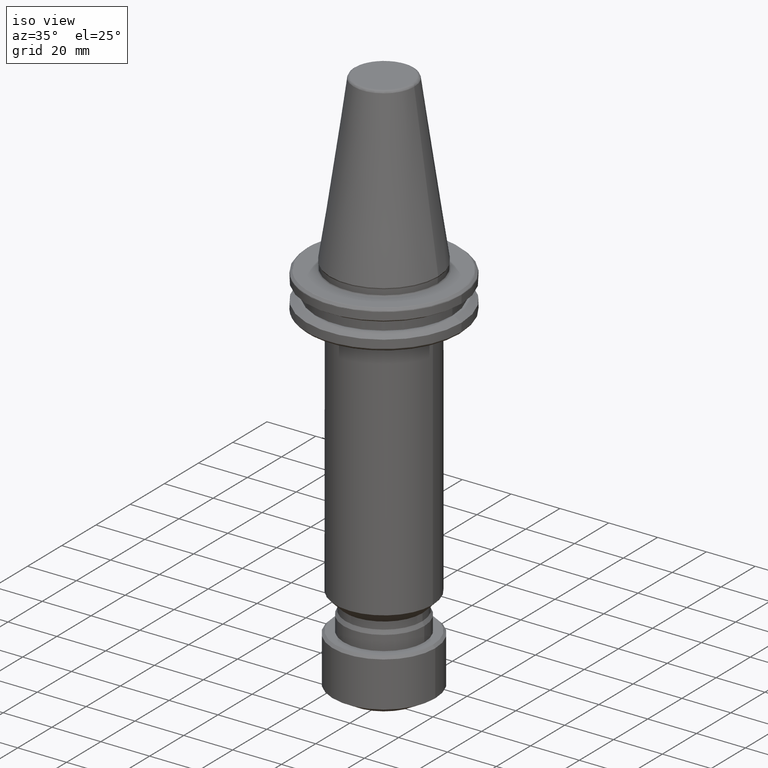
[diagram: clean part render]
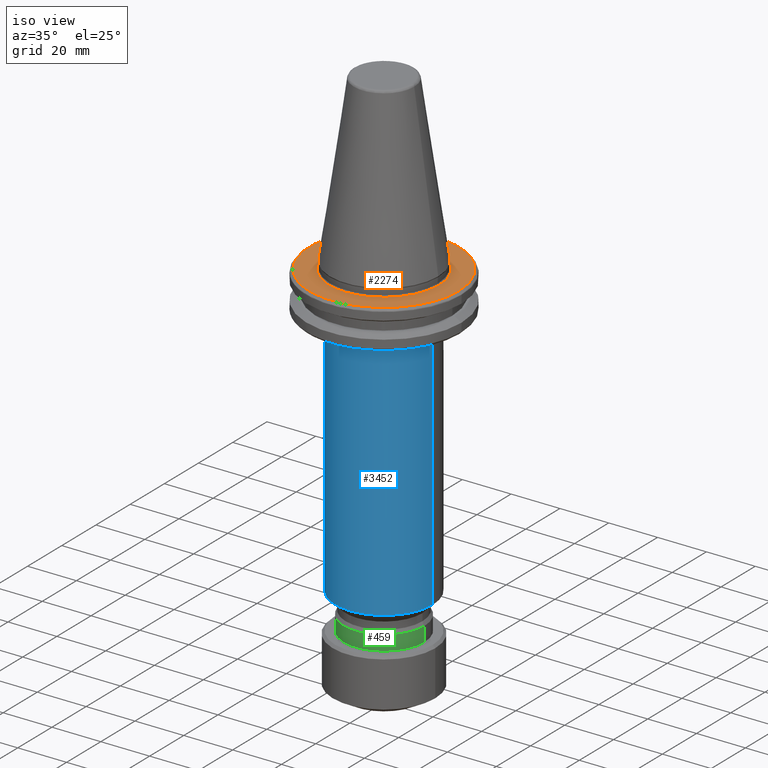
[diagram: same view with three faces highlighted in distinct colors, each labeled with its STEP entity id]
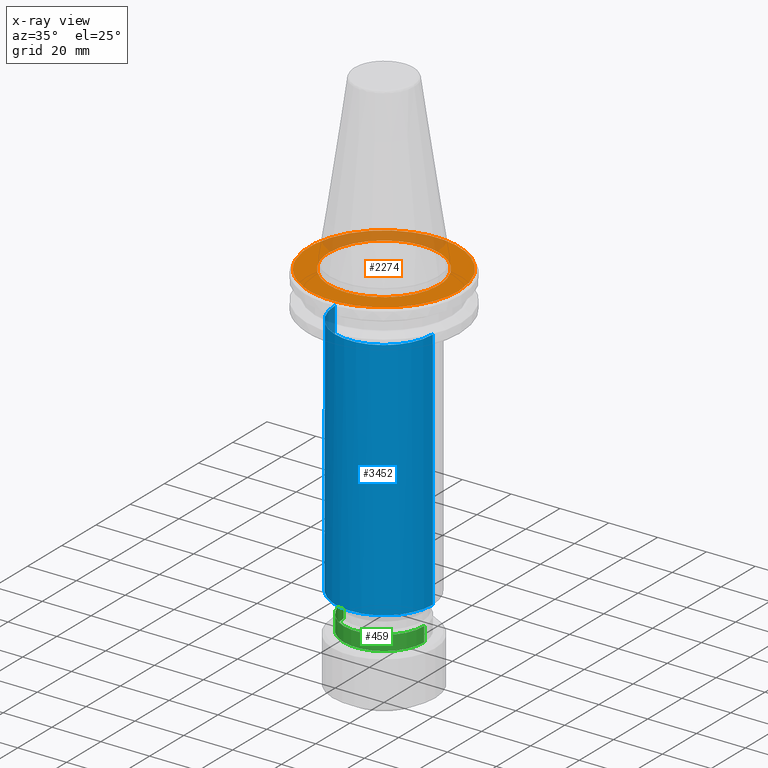
[diagram: x-ray of the same camera — body ghosted, the three highlighted faces saturated]
A machine part, iso view with three faces highlighted in distinct colors.
The next image is the same camera in x-ray (body ghosted, the three faces saturated) — at least one of them is partly hidden behind the body in this view.
Their STEP definitions:

[orange] entity #2274 — the highlighted planar face has unit normal (0, 0, 1).
#6 = CARTESIAN_POINT ( 'NONE',  ( 4.251028217301676900, -22.09485092206981000, -3.200000000000003300 ) ) ;
#8 = CARTESIAN_POINT ( 'NONE',  ( 20.40055232577446300, 9.504079748842523000, -3.200000000000002800 ) ) ;
#15 = CARTESIAN_POINT ( 'NONE',  ( 30.25683737115480900, 4.463908765860851200, -3.200000000000004200 ) ) ;
#19 = CARTESIAN_POINT ( 'NONE',  ( 22.11603594838274800, 4.139014538616728500, -3.200000000000002800 ) ) ;
#24 = CARTESIAN_POINT ( 'NONE',  ( 27.83926536632630900, 12.67616131523396600, -3.200000000000002800 ) ) ;
#30 = CARTESIAN_POINT ( 'NONE',  ( 4.407618502877016700, -22.06440325786277500, -3.200000000000003300 ) ) ;
#34 = CARTESIAN_POINT ( 'NONE',  ( 21.25737027114979600, 21.98943496480594500, -3.200000000000002800 ) ) ;
#40 = CARTESIAN_POINT ( 'NONE',  ( 8.458563634139736100, -20.84958280862343500, -3.200000000000003300 ) ) ;
#41 = ORIENTED_EDGE ( 'NONE', *, *, #3457, .T. ) ;
#49 = CARTESIAN_POINT ( 'NONE',  ( 13.43017972972334000, 27.47815279796058300, -3.200000000000002400 ) ) ;
#52 = CARTESIAN_POINT ( 'NONE',  ( 8.590524805351991600, -20.79589492657481400, -3.200000000000003300 ) ) ;
#56 = EDGE_LOOP ( 'NONE', ( #74, #1421 ) ) ;
#70 = CARTESIAN_POINT ( 'NONE',  ( 8.896980882703543300, -20.66783356944393200, -3.200000000000003300 ) ) ;
#74 = ORIENTED_EDGE ( 'NONE', *, *, #3272, .T. ) ;
#90 = CARTESIAN_POINT ( 'NONE',  ( 22.45304634867161300, -1.715799754931167900, -3.200000000000004200 ) ) ;
#99 = CARTESIAN_POINT ( 'NONE',  ( -25.94001894740214500, 16.20252111301403600, -3.200000000000003300 ) ) ;
#124 = CARTESIAN_POINT ( 'NONE',  ( 22.31609819896382200, -2.907458251744042200, -3.200000000000002800 ) ) ;
#129 = CARTESIAN_POINT ( 'NONE',  ( 22.50000000000000400, 0.0000000000000000000, -3.200000000000002400 ) ) ;
#137 = CARTESIAN_POINT ( 'NONE',  ( 22.49999999999999600, -0.6880163828697204400, -3.200000000000003300 ) ) ;
#143 = CARTESIAN_POINT ( 'NONE',  ( 20.64043889494423200, -8.988933404973398200, -3.200000000000003700 ) ) ;
#155 = CARTESIAN_POINT ( 'NONE',  ( 20.93772414133970000, -8.237955812652693100, -3.200000000000003300 ) ) ;
#170 = CARTESIAN_POINT ( 'NONE',  ( 20.95368502148340500, -8.197263642347369500, -3.200000000000002800 ) ) ;
#173 = CARTESIAN_POINT ( 'NONE',  ( -17.50055599936686700, 25.08445269893392600, -3.200000000000002400 ) ) ;
#181 = CARTESIAN_POINT ( 'NONE',  ( 19.18907189198100100, -11.75138774876444200, -3.200000000000004200 ) ) ;
#195 = CARTESIAN_POINT ( 'NONE',  ( 19.53083148214621900, -11.18287332203636600, -3.200000000000003700 ) ) ;
#209 = CARTESIAN_POINT ( 'NONE',  ( 20.16961076428826500, -10.02279629559978100, -3.200000000000002400 ) ) ;
#214 = CARTESIAN_POINT ( 'NONE',  ( 16.72793511370805700, -25.60566437919412400, -3.200000000000003700 ) ) ;
#217 = CARTESIAN_POINT ( 'NONE',  ( -17.03706203156341200, -25.46593605710544500, -3.200000000000003300 ) ) ;
#221 = CARTESIAN_POINT ( 'NONE',  ( 12.87560569880346700, -18.45365423866068300, -3.200000000000003300 ) ) ;
#222 = CARTESIAN_POINT ( 'NONE',  ( -21.36063849916189700, 7.086048807666241300, -3.200000000000003300 ) ) ;
#225 = CARTESIAN_POINT ( 'NONE',  ( 23.51603751684179900, -19.62778218946926500, -3.200000000000002400 ) ) ;
#230 = CARTESIAN_POINT ( 'NONE',  ( 13.42792791067997600, -18.06135158014202000, -3.200000000000003300 ) ) ;
#235 = CARTESIAN_POINT ( 'NONE',  ( -17.98264380950361700, 13.61204652639205100, -3.200000000000003300 ) ) ;
#239 = CARTESIAN_POINT ( 'NONE',  ( 29.04560989628816300, -9.578915174263572800, -3.200000000000003300 ) ) ;
#242 = CARTESIAN_POINT ( 'NONE',  ( -29.60519698500169400, -7.688059179535382100, -3.200000000000002800 ) ) ;
#244 = CARTESIAN_POINT ( 'NONE',  ( 14.49938022714922100, -17.23607257882569900, -3.200000000000003300 ) ) ;
#249 = CARTESIAN_POINT ( 'NONE',  ( -8.590524805356331200, 20.79589492657273200, -3.200000000000002400 ) ) ;
#251 = CARTESIAN_POINT ( 'NONE',  ( 30.58431457505076500, 0.0000000000000000000, -3.200000000000002800 ) ) ;
#256 = CARTESIAN_POINT ( 'NONE',  ( 12.39175045571029600, -18.78040064549236700, -3.200000000000003300 ) ) ;
#257 = EDGE_CURVE ( 'NONE', #2006, #2253, #2364, .T. ) ;
#258 = CARTESIAN_POINT ( 'NONE',  ( -2.741286511587083000, 22.37475781688785400, -3.200000000000003700 ) ) ;
#262 = CARTESIAN_POINT ( 'NONE',  ( -24.82288649370472200, 17.88588114716817800, -3.200000000000003700 ) ) ;
#263 = CARTESIAN_POINT ( 'NONE',  ( 12.47437238289376500, -18.72563884435562500, -3.200000000000004200 ) ) ;
#266 = CARTESIAN_POINT ( 'NONE',  ( 7.086048807648320600, 21.36063849916836700, -3.200000000000003300 ) ) ;
#277 = CARTESIAN_POINT ( 'NONE',  ( 12.63533988221884200, -18.61742605471019700, -3.200000000000003300 ) ) ;
#279 = CARTESIAN_POINT ( 'NONE',  ( 13.61204652639696800, 17.98264380950370300, -3.200000000000004200 ) ) ;
#288 = CARTESIAN_POINT ( 'NONE',  ( 20.79589492657333900, 8.590524805355373800, -3.200000000000002800 ) ) ;
#292 = CARTESIAN_POINT ( 'NONE',  ( 30.23542110148328300, 4.606748291938395700, -3.200000000000004200 ) ) ;
#300 = CARTESIAN_POINT ( 'NONE',  ( 22.37479026312431100, 2.741111199236773400, -3.200000000000002800 ) ) ;
#306 = CARTESIAN_POINT ( 'NONE',  ( 27.38773233231200900, 13.61336996243875700, -3.200000000000003700 ) ) ;
#315 = AXIS2_PLACEMENT_3D ( 'NONE', #1647, #832, #2717 ) ;
#318 = CARTESIAN_POINT ( 'NONE',  ( 19.64699716448421500, 23.46525560291198800, -3.200000000000002800 ) ) ;
#331 = CARTESIAN_POINT ( 'NONE',  ( 13.20180910046485700, 27.58831379343375500, -3.200000000000004600 ) ) ;
#368 = CARTESIAN_POINT ( 'NONE',  ( -29.48124923293185500, -8.141340568168438100, -3.200000000000002400 ) ) ;
#384 = CARTESIAN_POINT ( 'NONE',  ( -25.43598951908677500, 16.98769423997703500, -3.200000000000003300 ) ) ;
#386 = CARTESIAN_POINT ( 'NONE',  ( -22.50000000000000700, -1.376388306158772500, -3.200000000000003700 ) ) ;
#397 = CARTESIAN_POINT ( 'NONE',  ( -29.45234853339062300, 8.333223866105580400, -3.200000000000004200 ) ) ;
#400 = CARTESIAN_POINT ( 'NONE',  ( -22.37479026312430700, -2.741111199249898400, -3.200000000000004200 ) ) ;
#402 = CARTESIAN_POINT ( 'NONE',  ( -22.12045798509555200, -4.115310202398622300, -3.200000000000003300 ) ) ;
#408 = CARTESIAN_POINT ( 'NONE',  ( -30.49913331156915000, -2.603266312738875800, -3.200000000000003700 ) ) ;
#411 = CARTESIAN_POINT ( 'NONE',  ( -22.11603594838243900, -4.139014538617989700, -3.200000000000003700 ) ) ;
#416 = CARTESIAN_POINT ( 'NONE',  ( -22.10760170058084000, -4.183831549485550900, -3.200000000000003700 ) ) ;
#427 = CARTESIAN_POINT ( 'NONE',  ( -22.09485092206732700, -4.251028217309717600, -3.200000000000003700 ) ) ;
#432 = CARTESIAN_POINT ( 'NONE',  ( -22.50000000000000400, 2.755455298081544800E-015, -3.200000000000002400 ) ) ;
#441 = CARTESIAN_POINT ( 'NONE',  ( -21.54071728403163600, -6.571610993424445500, -3.200000000000003300 ) ) ;
#471 = CARTESIAN_POINT ( 'NONE',  ( -21.18878749287234700, -7.603831144579803700, -3.200000000000003300 ) ) ;
#483 = CARTESIAN_POINT ( 'NONE',  ( -30.48577087148533200, 2.454392795803261900, -3.200000000000003700 ) ) ;
#485 = CARTESIAN_POINT ( 'NONE',  ( -20.90345235396920400, -8.324524703927284700, -3.200000000000003300 ) ) ;
#495 = CARTESIAN_POINT ( 'NONE',  ( -15.14158967653299800, 26.57327955334291000, -3.200000000000002800 ) ) ;
#496 = CARTESIAN_POINT ( 'NONE',  ( -20.88510905071626700, -8.370451108368008900, -3.200000000000003300 ) ) ;
#506 = CARTESIAN_POINT ( 'NONE',  ( 17.14932757287630200, -25.32397030502925600, -3.200000000000002800 ) ) ;
#511 = CARTESIAN_POINT ( 'NONE',  ( -20.84958280862066700, -8.458563634144654800, -3.200000000000003700 ) ) ;
#515 = CARTESIAN_POINT ( 'NONE',  ( -21.03591195339059200, 7.984698353433744300, -3.200000000000003300 ) ) ;
#517 = CARTESIAN_POINT ( 'NONE',  ( 25.74326481164083400, -16.55116382282741900, -3.200000000000003300 ) ) ;
#525 = CARTESIAN_POINT ( 'NONE',  ( -20.79589492657008900, -8.590524805360397300, -3.200000000000003300 ) ) ;
#528 = CARTESIAN_POINT ( 'NONE',  ( -15.36086717163463100, 16.45896426178976300, -3.200000000000003700 ) ) ;
#530 = CARTESIAN_POINT ( 'NONE',  ( 29.09460387900130500, -9.429042497913098200, -3.200000000000002800 ) ) ;
#531 = DIRECTION ( 'NONE',  ( -0.0000000000000000000, -0.0000000000000000000, 1.000000000000000000 ) ) ;
#534 = CARTESIAN_POINT ( 'NONE',  ( -11.99256734168715800, -19.03780993567515600, -3.200000000000003300 ) ) ;
#536 = CARTESIAN_POINT ( 'NONE',  ( -8.370451108366790300, 20.88510905071706600, -3.200000000000003300 ) ) ;
#543 = CARTESIAN_POINT ( 'NONE',  ( -24.35467712833948500, -18.50000000000000000, -3.200000000000001500 ) ) ;
#549 = CARTESIAN_POINT ( 'NONE',  ( 0.6879287486189595800, 22.50001621479642500, -3.200000000000002800 ) ) ;
#557 = CARTESIAN_POINT ( 'NONE',  ( -11.75138774876684200, -19.18907189198004900, -3.200000000000002400 ) ) ;
#560 = CARTESIAN_POINT ( 'NONE',  ( 7.984698353428142600, 21.03591195339260600, -3.200000000000003700 ) ) ;
#569 = EDGE_CURVE ( 'NONE', #2546, #3165, #2595, .T. ) ;
#570 = CARTESIAN_POINT ( 'NONE',  ( 16.45896426179462000, 15.36086717162725700, -3.200000000000002800 ) ) ;
#582 = CARTESIAN_POINT ( 'NONE',  ( 20.88510905071724400, 8.370451108366497200, -3.200000000000002000 ) ) ;
#587 = CARTESIAN_POINT ( 'NONE',  ( 29.87181404182108600, 6.650821378700335600, -3.200000000000003700 ) ) ;
#592 = CARTESIAN_POINT ( 'NONE',  ( -11.18287332204048700, -19.53083148214458500, -3.200000000000003300 ) ) ;
#595 = CARTESIAN_POINT ( 'NONE',  ( 22.50000000000000400, 0.0000000000000000000, -3.200000000000002400 ) ) ;
#599 = CARTESIAN_POINT ( 'NONE',  ( 27.24785232258904000, 13.89121605744883100, -3.200000000000003700 ) ) ;
#603 = CARTESIAN_POINT ( 'NONE',  ( -13.61204652640028800, -17.98264380950038800, -3.200000000000003700 ) ) ;
#612 = CARTESIAN_POINT ( 'NONE',  ( 17.91356280168490400, 24.79077054223750000, -3.200000000000003700 ) ) ;
#617 = CARTESIAN_POINT ( 'NONE',  ( -12.23098025896354500, -18.88550870197710900, -3.200000000000003300 ) ) ;
#624 = CARTESIAN_POINT ( 'NONE',  ( 11.69968984085065400, 28.30117587104800900, -3.200000000000004600 ) ) ;
#627 = CARTESIAN_POINT ( 'NONE',  ( -12.15280497094398100, -18.93590339580075400, -3.200000000000003700 ) ) ;
#653 = CARTESIAN_POINT ( 'NONE',  ( 21.99164062164117800, -4.811519987949947300, -3.200000000000003700 ) ) ;
#660 = CARTESIAN_POINT ( 'NONE',  ( -18.25550594149615700, 24.54047191475998300, -3.200000000000003300 ) ) ;
#672 = ORIENTED_EDGE ( 'NONE', *, *, #2681, .T. ) ;
#685 = VERTEX_POINT ( 'NONE', #3390 ) ;
#690 = ORIENTED_EDGE ( 'NONE', *, *, #1924, .T. ) ;
#726 = CARTESIAN_POINT ( 'NONE',  ( -18.61742605471202700, -12.63533988221470800, -3.200000000000002800 ) ) ;
#743 = CARTESIAN_POINT ( 'NONE',  ( -18.45365423866372400, -12.87560569879659900, -3.200000000000003300 ) ) ;
#748 = CARTESIAN_POINT ( 'NONE',  ( 8.749999999999978700, -29.30593451889331600, -3.200000000000004200 ) ) ;
#753 = CARTESIAN_POINT ( 'NONE',  ( -29.39627059820102400, -8.442993445759224600, -3.200000000000004200 ) ) ;
#756 = CARTESIAN_POINT ( 'NONE',  ( -18.06135158014722800, -13.42792791066820300, -3.200000000000003300 ) ) ;
#770 = CARTESIAN_POINT ( 'NONE',  ( -19.24838585782649900, -11.67597141482940200, -3.200000000000003300 ) ) ;
#775 = CARTESIAN_POINT ( 'NONE',  ( 11.86640829661451100, -28.19324632028087800, -3.200000000000004200 ) ) ;
#779 = CARTESIAN_POINT ( 'NONE',  ( -18.00675945253561100, 24.72355445175599400, -3.200000000000002800 ) ) ;
#781 = CARTESIAN_POINT ( 'NONE',  ( -18.78040064549380300, -12.39175045570773800, -3.200000000000003700 ) ) ;
#784 = CARTESIAN_POINT ( 'NONE',  ( -22.31609819896382200, 2.907458251726792400, -3.200000000000003300 ) ) ;
#787 = CARTESIAN_POINT ( 'NONE',  ( 17.27398592321570800, -25.23910393721158100, -3.200000000000003700 ) ) ;
#793 = CARTESIAN_POINT ( 'NONE',  ( -18.72563884435658800, -12.47437238289159500, -3.200000000000003700 ) ) ;
#795 = CARTESIAN_POINT ( 'NONE',  ( -20.95368502148435000, 8.197263642344069000, -3.200000000000004200 ) ) ;
#798 = CARTESIAN_POINT ( 'NONE',  ( 26.85489300923346800, -14.63881711983421500, -3.200000000000003700 ) ) ;
#807 = CARTESIAN_POINT ( 'NONE',  ( -13.42792791067768300, 18.06135158014102500, -3.200000000000002400 ) ) ;
#811 = CARTESIAN_POINT ( 'NONE',  ( 29.68542035770630200, -7.438720675836878000, -3.200000000000003300 ) ) ;
#818 = CARTESIAN_POINT ( 'NONE',  ( -7.603831144568692600, 21.18878749287429700, -3.200000000000003700 ) ) ;
#823 = CARTESIAN_POINT ( 'NONE',  ( -29.91282126790706600, 6.576107746335245500, -3.200000000000003700 ) ) ;
#829 = CARTESIAN_POINT ( 'NONE',  ( 2.907343231789925000, 22.31611948088413300, -3.200000000000003300 ) ) ;
#832 = DIRECTION ( 'NONE',  ( 0.0000000000000000000, 0.0000000000000000000, 1.000000000000000000 ) ) ;
#838 = CARTESIAN_POINT ( 'NONE',  ( 8.197263642342383200, 20.95368502148494400, -3.200000000000002800 ) ) ;
#845 = CARTESIAN_POINT ( 'NONE',  ( -28.83626103401308400, -10.22499329431278300, -3.200000000000003300 ) ) ;
#848 = CARTESIAN_POINT ( 'NONE',  ( 18.06135158014743100, 13.42792791066801600, -3.200000000000004200 ) ) ;
#854 = CARTESIAN_POINT ( 'NONE',  ( 30.58431457505076500, 0.0000000000000000000, -3.200000000000002800 ) ) ;
#860 = CARTESIAN_POINT ( 'NONE',  ( 21.18878749287739900, 7.603831144559517700, -3.200000000000004200 ) ) ;
#866 = CARTESIAN_POINT ( 'NONE',  ( 29.32115263376917400, 8.703095408838848400, -3.200000000000003700 ) ) ;
#869 = CARTESIAN_POINT ( 'NONE',  ( 21.74157624390884500, -5.873028755191072900, -3.200000000000003700 ) ) ;
#875 = CARTESIAN_POINT ( 'NONE',  ( 25.53517509616356700, 16.91770336009014700, -3.200000000000003300 ) ) ;
#887 = CARTESIAN_POINT ( 'NONE',  ( 17.48831565732718800, 25.09107183108665900, -3.200000000000003300 ) ) ;
#897 = CARTESIAN_POINT ( 'NONE',  ( 8.750000000000010700, 29.30593451889331300, -3.200000000000004200 ) ) ;
#900 = CARTESIAN_POINT ( 'NONE',  ( -15.27351905694624500, 26.49765628487130100, -3.200000000000003700 ) ) ;
#903 = CARTESIAN_POINT ( 'NONE',  ( 22.13986916256529000, -4.009566559498702000, -3.200000000000002000 ) ) ;
#907 = CARTESIAN_POINT ( 'NONE',  ( 4.139014538615635200, -22.11603594838316400, -3.200000000000003300 ) ) ;
#932 = CARTESIAN_POINT ( 'NONE',  ( -8.749999999999934300, 29.30593451889333100, -3.200000000000004200 ) ) ;
#941 = FACE_BOUND ( 'NONE', #56, .T. ) ;
#971 = CARTESIAN_POINT ( 'NONE',  ( -28.14951867898409400, -11.95872026362790300, -3.200000000000002400 ) ) ;
#982 = CIRCLE ( 'NONE', #2714, 30.58431457505076200 ) ;
#989 = CARTESIAN_POINT ( 'NONE',  ( 18.88550870197563500, -12.23098025896565000, -3.200000000000003300 ) ) ;
#994 = CARTESIAN_POINT ( 'NONE',  ( 18.93590339580105900, -12.15280497094321500, -3.200000000000005100 ) ) ;
#1006 = CARTESIAN_POINT ( 'NONE',  ( 19.03780993567572800, -11.99256734168571200, -3.200000000000003300 ) ) ;
#1034 = CARTESIAN_POINT ( 'NONE',  ( 5.341505914814308500, -21.86223353763812900, -3.200000000000002400 ) ) ;
#1036 = CARTESIAN_POINT ( 'NONE',  ( -22.50000000000000000, 0.6880163828565796200, -3.200000000000003300 ) ) ;
#1050 = CARTESIAN_POINT ( 'NONE',  ( 12.80099507030910100, -27.77681930598339800, -3.200000000000003300 ) ) ;
#1058 = CARTESIAN_POINT ( 'NONE',  ( -22.17743819738468900, 3.797954953880907400, -3.200000000000003300 ) ) ;
#1064 = CARTESIAN_POINT ( 'NONE',  ( 19.00230350506911800, -23.99031363749923800, -3.200000000000003300 ) ) ;
#1075 = CARTESIAN_POINT ( 'NONE',  ( -20.64043889494947200, 8.988933404968229000, -3.200000000000003300 ) ) ;
#1076 = CARTESIAN_POINT ( 'NONE',  ( 27.10247095660326600, -14.17277443620514000, -3.200000000000004200 ) ) ;
#1085 = CARTESIAN_POINT ( 'NONE',  ( -12.63533988221803900, 18.61742605470985300, -3.200000000000002400 ) ) ;
#1088 = CARTESIAN_POINT ( 'NONE',  ( 30.11268354679531000, -5.357254148498363100, -3.200000000000002800 ) ) ;
#1095 = CARTESIAN_POINT ( 'NONE',  ( -5.341505914849515900, 21.86223353762529300, -3.200000000000003300 ) ) ;
#1103 = CARTESIAN_POINT ( 'NONE',  ( 3.797919010150634400, 22.17744484798479500, -3.200000000000003300 ) ) ;
#1110 = CARTESIAN_POINT ( 'NONE',  ( 22.15133245634663300, -3.946100473371058700, -3.200000000000003700 ) ) ;
#1113 = CARTESIAN_POINT ( 'NONE',  ( 8.988933404959986700, 20.64043889495324200, -3.200000000000003700 ) ) ;
#1124 = CARTESIAN_POINT ( 'NONE',  ( 22.17743819738469600, -3.797954953886299600, -3.200000000000003700 ) ) ;
#1129 = CARTESIAN_POINT ( 'NONE',  ( 18.61742605471209800, 12.63533988221465000, -3.200000000000003300 ) ) ;
#1136 = CARTESIAN_POINT ( 'NONE',  ( -28.24048383202964300, -11.74385340892641800, -3.200000000000002800 ) ) ;
#1137 = CARTESIAN_POINT ( 'NONE',  ( 22.22708190165376200, -3.501431974169107800, -3.200000000000003700 ) ) ;
#1139 = CARTESIAN_POINT ( 'NONE',  ( 21.86223353762935800, 5.341505914837489900, -3.200000000000002800 ) ) ;
#1145 = CARTESIAN_POINT ( 'NONE',  ( 29.17179097118097200, 9.187465360232661000, -3.200000000000003300 ) ) ;
#1152 = CARTESIAN_POINT ( 'NONE',  ( 23.22435209591974100, 19.93203895181989800, -3.200000000000003300 ) ) ;
#1162 = CARTESIAN_POINT ( 'NONE',  ( 17.35872434408157300, 25.18089566416637100, -3.200000000000003300 ) ) ;
#1181 = ORIENTED_EDGE ( 'NONE', *, *, #2204, .T. ) ;
#1217 = CARTESIAN_POINT ( 'NONE',  ( -28.44688173161181100, -11.24038425295106000, -3.200000000000002800 ) ) ;
#1219 = CARTESIAN_POINT ( 'NONE',  ( 22.50000000000000400, 0.0000000000000000000, -3.200000000000002400 ) ) ;
#1232 = CARTESIAN_POINT ( 'NONE',  ( -14.94335966608218900, 26.68593816532801100, -3.200000000000001500 ) ) ;
#1236 = CARTESIAN_POINT ( 'NONE',  ( 20.98673507276421500, -8.112282896148103700, -3.200000000000003300 ) ) ;
#1240 = CARTESIAN_POINT ( 'NONE',  ( 21.03591195338748300, -7.984698353444730200, -3.200000000000003300 ) ) ;
#1252 = CARTESIAN_POINT ( 'NONE',  ( 21.14787063408966400, -7.686207123305460500, -3.200000000000003700 ) ) ;
#1255 = CARTESIAN_POINT ( 'NONE',  ( 15.36086717163637700, -16.45896426179050900, -3.200000000000003300 ) ) ;
#1261 = CARTESIAN_POINT ( 'NONE',  ( 17.00797338681919900, -14.81177920651095200, -3.200000000000003700 ) ) ;
#1262 = B_SPLINE_CURVE_WITH_KNOTS ( 'NONE', 3,
 ( #748, #3447, #2401, #775, #2665, #1050, #2916, #1323, #3195, #1597, #3461, #1878, #214, #2137, #506, #2411, #787, #2672, #1064, #2928, #1333, #3205, #1610, #3475, #1886, #225, #2149, #517, #2426, #798, #2684, #1076, #2940, #1344, #3221, #1624, #3482, #1901, #239, #2162, #530, #2434, #811, #2694, #1088, #2952, #1355, #3230, #1636, #3492, #1912, #251 ),
 .UNSPECIFIED., .F., .F.,
 ( 4, 1, 1, 1, 1, 2, 2, 1, 1, 1, 1, 2, 2, 1, 1, 1, 2, 2, 2, 1, 1, 1, 2, 2, 1, 1, 1, 1, 2, 2, 1, 1, 1, 1, 2, 2, 4 ),
 ( 0.0000000000000000000, 0.06250000000000248400, 0.09375000000000378900, 0.1093750000000043000, 0.1171875000000045100, 0.1210937500000046100, 0.1250000000000046900, 0.1875000000000055500, 0.2187500000000059700, 0.2343750000000060800, 0.2421875000000061100, 0.2460937500000061100, 0.2500000000000061100, 0.3125000000000038300, 0.3437500000000025500, 0.3593750000000019400, 0.3671875000000016700, 0.3750000000000013300, 0.4999999999999986100, 0.5624999999999972200, 0.5937499999999968900, 0.6093749999999965600, 0.6171874999999964500, 0.6249999999999963400, 0.6874999999999952300, 0.7187499999999946700, 0.7343749999999944500, 0.7421874999999943400, 0.7460937499999943400, 0.7499999999999943400, 0.8124999999999963400, 0.8437499999999973400, 0.8593749999999978900, 0.8671874999999981100, 0.8710937499999983300, 0.8749999999999984500, 1.000000000000000000 ),
 .UNSPECIFIED. ) ;
#1267 = CARTESIAN_POINT ( 'NONE',  ( 17.98264380952407700, -13.61204652636657500, -3.200000000000003300 ) ) ;
#1323 = CARTESIAN_POINT ( 'NONE',  ( 13.02197758003928200, -27.67364674244809900, -3.200000000000004600 ) ) ;
#1326 = CARTESIAN_POINT ( 'NONE',  ( -30.46677238502067600, 2.680059272112637700, -3.200000000000002800 ) ) ;
#1330 = CARTESIAN_POINT ( 'NONE',  ( -22.13986916256529700, 4.009566559497096200, -3.200000000000003300 ) ) ;
#1333 = CARTESIAN_POINT ( 'NONE',  ( 20.65127541913194900, -22.56109142495586900, -3.200000000000003300 ) ) ;
#1336 = CARTESIAN_POINT ( 'NONE',  ( -12.21006217779229500, -28.10145510426860900, -3.200000000000002800 ) ) ;
#1343 = CARTESIAN_POINT ( 'NONE',  ( -19.53083148215309000, 11.18287332202958400, -3.200000000000003300 ) ) ;
#1344 = CARTESIAN_POINT ( 'NONE',  ( 27.58067624822161400, -13.24394569613970600, -3.200000000000002400 ) ) ;
#1349 = CARTESIAN_POINT ( 'NONE',  ( -22.06440325785796100, -4.407618502892575000, -3.200000000000003300 ) ) ;
#1352 = CARTESIAN_POINT ( 'NONE',  ( -12.39175045570897800, 18.78040064549300000, -3.200000000000003300 ) ) ;
#1355 = CARTESIAN_POINT ( 'NONE',  ( 30.19618385838943900, -4.857303280940263000, -3.200000000000002800 ) ) ;
#1358 = CARTESIAN_POINT ( 'NONE',  ( -22.45144644053691300, 20.78517142372936300, -3.200000000000003300 ) ) ;
#1360 = CARTESIAN_POINT ( 'NONE',  ( -22.00072453872795100, -4.719991316697491600, -3.200000000000003700 ) ) ;
#1363 = CARTESIAN_POINT ( 'NONE',  ( -4.407618502888017700, 22.06440325785876400, -3.200000000000003700 ) ) ;
#1369 = CARTESIAN_POINT ( 'NONE',  ( -23.17496761742861400, 19.96233499369145300, -3.200000000000003300 ) ) ;
#1372 = CARTESIAN_POINT ( 'NONE',  ( -21.86223353762273500, -5.341505914864100600, -3.200000000000003300 ) ) ;
#1376 = CARTESIAN_POINT ( 'NONE',  ( 4.009555819168165900, 22.13987114982795000, -3.200000000000003700 ) ) ;
#1387 = CARTESIAN_POINT ( 'NONE',  ( 11.18287332201878000, 19.53083148215805000, -3.200000000000003700 ) ) ;
#1394 = CARTESIAN_POINT ( 'NONE',  ( -20.66783356943510700, -8.896980882719226700, -3.200000000000003300 ) ) ;
#1397 = CARTESIAN_POINT ( 'NONE',  ( 18.78040064549280800, 12.39175045570927800, -3.200000000000003300 ) ) ;
#1402 = CARTESIAN_POINT ( 'NONE',  ( 30.40972197857450300, 3.304480764663840100, -3.200000000000003700 ) ) ;
#1403 = CARTESIAN_POINT ( 'NONE',  ( 0.0000000000000000000, 0.0000000000000000000, -3.200000000000001500 ) ) ;
#1404 = CARTESIAN_POINT ( 'NONE',  ( 4.115307463144500100, -22.12045849206793200, -3.200000000000004200 ) ) ;
#1407 = CARTESIAN_POINT ( 'NONE',  ( 22.06440325786003200, 4.407618502884258000, -3.200000000000003700 ) ) ;
#1411 = CARTESIAN_POINT ( 'NONE',  ( 29.12613594598054000, 9.331192961517020400, -3.200000000000003300 ) ) ;
#1415 = CARTESIAN_POINT ( 'NONE',  ( -20.40055232576401100, -9.504079748858595500, -3.200000000000002400 ) ) ;
#1421 = ORIENTED_EDGE ( 'NONE', *, *, #569, .T. ) ;
#1426 = CARTESIAN_POINT ( 'NONE',  ( 21.70996927685224900, 21.54431431267950700, -3.200000000000003300 ) ) ;
#1430 = CARTESIAN_POINT ( 'NONE',  ( -19.82135572081725200, -10.69502432682423000, -3.200000000000003300 ) ) ;
#1438 = CARTESIAN_POINT ( 'NONE',  ( 15.62062435591030300, 26.31643672381659700, -3.200000000000003300 ) ) ;
#1441 = CARTESIAN_POINT ( 'NONE',  ( -29.12987215590605700, -9.340167935444158700, -3.200000000000004600 ) ) ;
#1453 = CARTESIAN_POINT ( 'NONE',  ( -10.02279629560528400, -20.16961076428609100, -3.200000000000003300 ) ) ;
#1459 = CARTESIAN_POINT ( 'NONE',  ( 0.0000000000000000000, 0.0000000000000000000, -3.200000000000001500 ) ) ;
#1461 = VERTEX_POINT ( 'NONE', #2628 ) ;
#1464 = CARTESIAN_POINT ( 'NONE',  ( -8.988933404976533500, -20.64043889494298900, -3.200000000000004200 ) ) ;
#1468 = CARTESIAN_POINT ( 'NONE',  ( -8.749999999999971600, -29.30593451889331600, -3.200000000000004200 ) ) ;
#1473 = CARTESIAN_POINT ( 'NONE',  ( -8.237955812652499400, -20.93772414133978200, -3.200000000000003300 ) ) ;
#1489 = VERTEX_POINT ( 'NONE', #2655 ) ;
#1508 = CARTESIAN_POINT ( 'NONE',  ( -7.686207123305462300, -21.14787063408966000, -3.200000000000003300 ) ) ;
#1517 = CARTESIAN_POINT ( 'NONE',  ( -7.086048807701388300, -21.36063849915201700, -3.200000000000003700 ) ) ;
#1527 = CARTESIAN_POINT ( 'NONE',  ( -5.873028755191068500, -21.74157624390884200, -3.200000000000003300 ) ) ;
#1542 = CARTESIAN_POINT ( 'NONE',  ( -17.23607257883263300, -14.49938022713351800, -3.200000000000002800 ) ) ;
#1553 = CARTESIAN_POINT ( 'NONE',  ( -16.45896426179448100, -15.36086717162741000, -3.200000000000004200 ) ) ;
#1561 = CARTESIAN_POINT ( 'NONE',  ( -9.916519147400103800, 28.95764183663230900, -3.200000000000003300 ) ) ;
#1566 = ORIENTED_EDGE ( 'NONE', *, *, #2343, .T. ) ;
#1578 = CARTESIAN_POINT ( 'NONE',  ( -14.81177920650302200, -17.00797338683712900, -3.200000000000002400 ) ) ;
#1597 = CARTESIAN_POINT ( 'NONE',  ( 13.84330885029949300, -27.28410426006818300, -3.200000000000004600 ) ) ;
#1603 = CARTESIAN_POINT ( 'NONE',  ( -8.197263642347373000, -20.95368502148340900, -3.200000000000002800 ) ) ;
#1606 = CARTESIAN_POINT ( 'NONE',  ( -22.12851860711429500, 4.071751450877952600, -3.200000000000002400 ) ) ;
#1610 = CARTESIAN_POINT ( 'NONE',  ( 21.03152593330741000, -22.20554153728286900, -3.200000000000003300 ) ) ;
#1613 = CARTESIAN_POINT ( 'NONE',  ( -8.749999999999971600, -29.30593451889331600, -3.200000000000004200 ) ) ;
#1617 = CARTESIAN_POINT ( 'NONE',  ( -8.112282896148109000, -20.98673507276421500, -3.200000000000003300 ) ) ;
#1619 = CARTESIAN_POINT ( 'NONE',  ( -19.03780993567813700, 11.99256734168333300, -3.200000000000003300 ) ) ;
#1624 = CARTESIAN_POINT ( 'NONE',  ( 28.63517167120699400, -10.75810060093314700, -3.200000000000003300 ) ) ;
#1628 = CARTESIAN_POINT ( 'NONE',  ( 4.183831549480899500, -22.10760170058227900, -3.200000000000003700 ) ) ;
#1629 = ORIENTED_EDGE ( 'NONE', *, *, #1672, .T. ) ;
#1632 = CARTESIAN_POINT ( 'NONE',  ( -10.69502432680689300, 19.82135572082858500, -3.200000000000003300 ) ) ;
#1636 = CARTESIAN_POINT ( 'NONE',  ( 30.22027043771730000, -4.705091276934633800, -3.200000000000003700 ) ) ;
#1641 = CARTESIAN_POINT ( 'NONE',  ( -7.984698353444732000, -21.03591195338748700, -3.200000000000003300 ) ) ;
#1644 = CARTESIAN_POINT ( 'NONE',  ( -4.183831549484186700, 22.10760170058108200, -3.200000000000003300 ) ) ;
#1647 = CARTESIAN_POINT ( 'NONE',  ( 0.0000000000000000000, -1.716631345673151300E-016, -3.200000000000003300 ) ) ;
#1652 = CARTESIAN_POINT ( 'NONE',  ( 4.071751450878374500, 22.12851860711414900, -3.200000000000002800 ) ) ;
#1661 = CARTESIAN_POINT ( 'NONE',  ( 11.99256734167953600, 19.03780993567987400, -3.200000000000002800 ) ) ;
#1669 = CARTESIAN_POINT ( 'NONE',  ( -30.05429890997757200, -5.703788022620196700, -3.200000000000003700 ) ) ;
#1671 = CARTESIAN_POINT ( 'NONE',  ( -22.50000000000000400, 2.755455298081544800E-015, -3.200000000000002400 ) ) ;
#1672 = EDGE_CURVE ( 'NONE', #685, #1461, #1262, .T. ) ;
#1674 = VERTEX_POINT ( 'NONE', #3184 ) ;
#1676 = CARTESIAN_POINT ( 'NONE',  ( 19.82135572083119600, 10.69502432680279800, -3.200000000000003700 ) ) ;
#1682 = CARTESIAN_POINT ( 'NONE',  ( 30.27808101819945800, 4.319140586132493600, -3.200000000000004200 ) ) ;
#1683 = DIRECTION ( 'NONE',  ( 1.000000000000000000, 0.0000000000000000000, 0.0000000000000000000 ) ) ;
#1686 = CARTESIAN_POINT ( 'NONE',  ( 7.603831144541866000, -21.18878749288407800, -3.200000000000003700 ) ) ;
#1688 = CARTESIAN_POINT ( 'NONE',  ( 22.10760170058145800, 4.183831549483063100, -3.200000000000004200 ) ) ;
#1692 = CARTESIAN_POINT ( 'NONE',  ( 28.42400519015979300, 11.34454123683476300, -3.200000000000002800 ) ) ;
#1703 = CARTESIAN_POINT ( 'NONE',  ( 21.33423715765661300, 21.91487604514272600, -3.200000000000004600 ) ) ;
#1708 = CARTESIAN_POINT ( 'NONE',  ( 8.324524703929661500, -20.90345235396846500, -3.200000000000003700 ) ) ;
#1712 = CARTESIAN_POINT ( 'NONE',  ( 13.74839770495371400, 27.32133677087585300, -3.200000000000003300 ) ) ;
#1718 = CARTESIAN_POINT ( 'NONE',  ( 8.370451108365493600, -20.88510905071769100, -3.200000000000004200 ) ) ;
#1734 = DIRECTION ( 'NONE',  ( 1.000000000000000000, 0.0000000000000000000, 0.0000000000000000000 ) ) ;
#1743 = B_SPLINE_CURVE_WITH_KNOTS ( 'NONE', 3,
 ( #854, #2741, #3000, #1402, #3269, #1682, #15, #1953, #292, #2216, #587, #2489, #866, #2754, #1145, #3010, #1411, #3280, #1692, #24, #1961, #306, #2228, #599, #2498, #875, #2766, #1152, #3019, #1426, #3292, #1703, #34, #1975, #318, #2236, #612, #2511, #887, #2774, #1162, #3032, #1438, #3301, #1712, #49, #1984, #331, #2248, #624, #2523, #897 ),
 .UNSPECIFIED., .F., .F.,
 ( 4, 1, 1, 1, 1, 2, 2, 1, 1, 1, 1, 2, 2, 1, 1, 1, 2, 2, 2, 1, 1, 1, 2, 2, 1, 1, 1, 1, 2, 2, 1, 1, 1, 1, 2, 2, 4 ),
 ( 0.0000000000000000000, 0.06249999999999998600, 0.09375000000000000000, 0.1093750000000000100, 0.1171874999999999700, 0.1210937499999999200, 0.1249999999999998600, 0.1874999999999995300, 0.2187499999999993300, 0.2343749999999992200, 0.2421874999999991700, 0.2460937499999992500, 0.2499999999999993300, 0.3124999999999997200, 0.3437500000000000000, 0.3593750000000000600, 0.3671875000000000000, 0.3749999999999998900, 0.4999999999999982800, 0.5624999999999975600, 0.5937499999999973400, 0.6093749999999973400, 0.6171874999999973400, 0.6249999999999973400, 0.6874999999999978900, 0.7187499999999982200, 0.7343749999999982200, 0.7421874999999982200, 0.7460937499999982200, 0.7499999999999982200, 0.8125000000000000000, 0.8437500000000008900, 0.8593750000000013300, 0.8671875000000015500, 0.8710937500000016700, 0.8750000000000017800, 1.000000000000000000 ),
 .UNSPECIFIED. ) ;
#1750 = CARTESIAN_POINT ( 'NONE',  ( 9.504079748831721000, -20.40055232577914500, -3.200000000000003300 ) ) ;
#1753 = CIRCLE ( 'NONE', #2579, 30.58431457505076200 ) ;
#1754 = AXIS2_PLACEMENT_3D ( 'NONE', #1459, #3319, #1734 ) ;
#1764 = CARTESIAN_POINT ( 'NONE',  ( 10.69502432678837800, -19.82135572083744200, -3.200000000000003300 ) ) ;
#1785 = CARTESIAN_POINT ( 'NONE',  ( -29.35224666532821700, -8.594763330017867600, -3.200000000000003300 ) ) ;
#1823 = CARTESIAN_POINT ( 'NONE',  ( -27.05153356259719300, -14.47569103934752600, -3.200000000000003300 ) ) ;
#1841 = CARTESIAN_POINT ( 'NONE',  ( 11.67597141480891300, -19.24838585783804100, -3.200000000000003700 ) ) ;
#1867 = CARTESIAN_POINT ( 'NONE',  ( -23.47705769608057800, 19.60237854231894500, -3.200000000000002800 ) ) ;
#1878 = CARTESIAN_POINT ( 'NONE',  ( 16.13194971534636200, -25.98948903612864600, -3.200000000000003700 ) ) ;
#1885 = CARTESIAN_POINT ( 'NONE',  ( -21.74157624392201900, 5.873028755144217100, -3.200000000000003300 ) ) ;
#1886 = CARTESIAN_POINT ( 'NONE',  ( 22.40114452918567900, -20.89129424429307800, -3.200000000000003700 ) ) ;
#1898 = CARTESIAN_POINT ( 'NONE',  ( -18.88550870197691400, 12.23098025896405400, -3.200000000000003300 ) ) ;
#1901 = CARTESIAN_POINT ( 'NONE',  ( 28.99655467840592800, -9.727253638758709200, -3.200000000000003300 ) ) ;
#1907 = CARTESIAN_POINT ( 'NONE',  ( 22.12851860711453600, -4.071751450877114200, -3.200000000000003300 ) ) ;
#1910 = CARTESIAN_POINT ( 'NONE',  ( -8.896980882711639900, 20.66783356944006700, -3.200000000000003300 ) ) ;
#1912 = CARTESIAN_POINT ( 'NONE',  ( 30.58431457505077200, -1.561562219138799400, -3.200000000000003700 ) ) ;
#1913 = PLANE ( 'NONE',  #315 ) ;
#1914 = CARTESIAN_POINT ( 'NONE',  ( -30.47970956005852400, 2.528533460623410000, -3.200000000000003300 ) ) ;
#1917 = CARTESIAN_POINT ( 'NONE',  ( -4.115307463143350800, 22.12045849206799600, -3.200000000000003300 ) ) ;
#1924 = EDGE_CURVE ( 'NONE', #1974, #685, #2871, .T. ) ;
#1927 = CARTESIAN_POINT ( 'NONE',  ( 5.873028755120318000, 21.74157624393063800, -3.200000000000002400 ) ) ;
#1940 = CARTESIAN_POINT ( 'NONE',  ( 12.23098025896376000, 18.88550870197691000, -3.200000000000003700 ) ) ;
#1947 = CARTESIAN_POINT ( 'NONE',  ( 20.66783356944120700, 8.896980882709847500, -3.200000000000002800 ) ) ;
#1953 = CARTESIAN_POINT ( 'NONE',  ( 30.24244276878575700, 4.560403435837984400, -3.200000000000003300 ) ) ;
#1957 = CARTESIAN_POINT ( 'NONE',  ( 22.12045798509555900, 4.115310202398825700, -3.200000000000003300 ) ) ;
#1961 = CARTESIAN_POINT ( 'NONE',  ( 27.52628396580671900, 13.33348093168900100, -3.200000000000003300 ) ) ;
#1966 = CARTESIAN_POINT ( 'NONE',  ( -4.071751450877116900, -22.12851860711453300, -3.200000000000002800 ) ) ;
#1974 = VERTEX_POINT ( 'NONE', #1468 ) ;
#1975 = CARTESIAN_POINT ( 'NONE',  ( 20.58104395212080500, 22.63882571495787500, -3.200000000000004200 ) ) ;
#1984 = CARTESIAN_POINT ( 'NONE',  ( 13.29323302808749600, 27.54438001541704000, -3.200000000000003700 ) ) ;
#1987 = CARTESIAN_POINT ( 'NONE',  ( -3.946081902448917300, -22.15133589248955200, -3.200000000000004200 ) ) ;
#1997 = CARTESIAN_POINT ( 'NONE',  ( 21.36063849915200700, -7.086048807701382100, -3.200000000000002400 ) ) ;
#2006 = VERTEX_POINT ( 'NONE', #932 ) ;
#2008 = CARTESIAN_POINT ( 'NONE',  ( -4.009555819172765800, -22.13987114982767300, -3.200000000000003700 ) ) ;
#2030 = CARTESIAN_POINT ( 'NONE',  ( 2.741286511513688400, -22.37475781689234500, -3.200000000000003700 ) ) ;
#2042 = CARTESIAN_POINT ( 'NONE',  ( -4.811519987949943700, -21.99164062164117100, -3.200000000000003300 ) ) ;
#2056 = CARTESIAN_POINT ( 'NONE',  ( -2.907343231839132800, -22.31611948088118800, -3.200000000000003300 ) ) ;
#2059 = CARTESIAN_POINT ( 'NONE',  ( -0.6879287486564484900, -22.50001621479418300, -3.200000000000003700 ) ) ;
#2070 = CARTESIAN_POINT ( 'NONE',  ( 1.375857497312903900, -22.49996757041163400, -3.200000000000002400 ) ) ;
#2074 = CARTESIAN_POINT ( 'NONE',  ( -30.58430088160966400, 0.8252062185727114800, -3.200000000000003300 ) ) ;
#2080 = CARTESIAN_POINT ( 'NONE',  ( -1.715646395057947200, -22.45307472456143200, -3.200000000000003300 ) ) ;
#2101 = CARTESIAN_POINT ( 'NONE',  ( -16.73340307637340600, 25.61393462948212700, -3.200000000000003300 ) ) ;
#2124 = CARTESIAN_POINT ( 'NONE',  ( -22.50000000000000400, 2.755455298081544800E-015, -3.200000000000002400 ) ) ;
#2137 = CARTESIAN_POINT ( 'NONE',  ( 17.02330348439927800, -25.40916637816325600, -3.200000000000003300 ) ) ;
#2139 = CARTESIAN_POINT ( 'NONE',  ( -18.50000000000000000, -24.35467712833948500, -3.200000000000001500 ) ) ;
#2145 = CARTESIAN_POINT ( 'NONE',  ( -21.14787063409543000, 7.686207123284956900, -3.200000000000003300 ) ) ;
#2149 = CARTESIAN_POINT ( 'NONE',  ( 25.03042619209346900, -17.59524950982857300, -3.200000000000004600 ) ) ;
#2159 = CARTESIAN_POINT ( 'NONE',  ( -17.00797338682269500, 14.81177920651246000, -3.200000000000003300 ) ) ;
#2162 = CARTESIAN_POINT ( 'NONE',  ( 29.07806852478075400, -9.479920520528152000, -3.200000000000002800 ) ) ;
#2163 = CARTESIAN_POINT ( 'NONE',  ( 0.0000000000000000000, 0.0000000000000000000, -3.200000000000001500 ) ) ;
#2165 = CARTESIAN_POINT ( 'NONE',  ( -25.73240088655859400, 16.53138120577962400, -3.200000000000003300 ) ) ;
#2170 = CARTESIAN_POINT ( 'NONE',  ( -8.458563634142274500, 20.84958280862222700, -3.200000000000003300 ) ) ;
#2172 = CARTESIAN_POINT ( 'NONE',  ( -24.35467712833948500, -18.50000000000000000, -3.200000000000001500 ) ) ;
#2180 = CARTESIAN_POINT ( 'NONE',  ( -1.375857497237936500, 22.49996757040713600, -3.200000000000002800 ) ) ;
#2185 = CARTESIAN_POINT ( 'NONE',  ( -25.82766579420152600, -16.56085603401222900, -3.200000000000003300 ) ) ;
#2190 = CARTESIAN_POINT ( 'NONE',  ( 7.686207123274498600, 21.14787063409920300, -3.200000000000003300 ) ) ;
#2196 = CARTESIAN_POINT ( 'NONE',  ( 14.81177920650270400, 17.00797338683744900, -3.200000000000002800 ) ) ;
#2204 = EDGE_CURVE ( 'NONE', #1674, #2006, #1753, .T. ) ;
#2209 = CARTESIAN_POINT ( 'NONE',  ( 20.84958280862257900, 8.458563634141706100, -3.200000000000002800 ) ) ;
#2216 = CARTESIAN_POINT ( 'NONE',  ( 30.10416084469950300, 5.458850156877512700, -3.200000000000004600 ) ) ;
#2223 = CARTESIAN_POINT ( 'NONE',  ( 22.50000000000000000, 1.376388306145704300, -3.200000000000002800 ) ) ;
#2228 = CARTESIAN_POINT ( 'NONE',  ( 27.29438307719159300, 13.79955834376027600, -3.200000000000003700 ) ) ;
#2236 = CARTESIAN_POINT ( 'NONE',  ( 18.50078877827851200, 24.36043102575702700, -3.200000000000003700 ) ) ;
#2239 = CARTESIAN_POINT ( 'NONE',  ( -30.54018886217344400, 1.756429892730188700, -3.200000000000003300 ) ) ;
#2248 = CARTESIAN_POINT ( 'NONE',  ( 13.15427429998768700, 27.61100680695567500, -3.200000000000003700 ) ) ;
#2253 = VERTEX_POINT ( 'NONE', #2172 ) ;
#2274 = ADVANCED_FACE ( 'NONE', ( #2995, #941 ), #1913, .T. ) ;
#2343 = EDGE_CURVE ( 'NONE', #1461, #1674, #1743, .T. ) ;
#2364 = B_SPLINE_CURVE_WITH_KNOTS ( 'NONE', 3,
 ( #3094, #1561, #3479, #3322, #3310, #1232, #495, #900, #3022, #3283, #2101, #173, #779, #660, #3224, #2897, #2887, #1358, #1369, #1867, #2417, #3408, #3422, #262, #384, #2165, #2493, #99, #3361, #2709, #2697, #397, #823, #3496, #2379, #3335, #1326, #1914, #483, #2239, #2074, #3241, #2406, #2552, #408, #3294, #1669, #2836, #242, #368, #753, #1785, #1441, #845, #1217, #1136, #971, #3273, #2455, #1823, #2185, #543 ),
 .UNSPECIFIED., .F., .F.,
 ( 4, 1, 1, 1, 1, 2, 2, 1, 2, 2, 2, 1, 1, 2, 2, 1, 1, 1, 2, 2, 2, 1, 1, 1, 1, 2, 2, 1, 2, 2, 2, 1, 1, 2, 2, 1, 1, 1, 2, 2, 4 ),
 ( 0.0000000000000000000, 0.06250000000000069400, 0.09375000000000108200, 0.1093750000000012800, 0.1171875000000013700, 0.1210937500000014300, 0.1250000000000014700, 0.1562500000000014700, 0.1718750000000016100, 0.1875000000000017200, 0.2500000000000018900, 0.2812500000000020000, 0.2968750000000018900, 0.3046875000000020000, 0.3125000000000020500, 0.3437500000000025500, 0.3593750000000027200, 0.3671875000000028900, 0.3710937500000029400, 0.3750000000000030000, 0.5000000000000023300, 0.5625000000000018900, 0.5937500000000016700, 0.6093750000000015500, 0.6171875000000015500, 0.6210937500000014400, 0.6250000000000013300, 0.6562500000000011100, 0.6718750000000008900, 0.6875000000000007800, 0.7500000000000001100, 0.7812499999999997800, 0.7968749999999996700, 0.8046874999999994400, 0.8124999999999993300, 0.8437499999999988900, 0.8593749999999987800, 0.8671874999999987800, 0.8710937499999986700, 0.8749999999999985600, 1.000000000000000000 ),
 .UNSPECIFIED. ) ;
#2379 = CARTESIAN_POINT ( 'NONE',  ( -30.39351583441844800, 3.435970030499790900, -3.200000000000003300 ) ) ;
#2401 = CARTESIAN_POINT ( 'NONE',  ( 10.60399651554605800, -28.70585737795477500, -3.200000000000003300 ) ) ;
#2406 = CARTESIAN_POINT ( 'NONE',  ( -30.57722589313976900, -0.7285515701932349100, -3.200000000000002400 ) ) ;
#2409 = CARTESIAN_POINT ( 'NONE',  ( -22.45304634867161300, 1.715799754908170300, -3.200000000000002800 ) ) ;
#2411 = CARTESIAN_POINT ( 'NONE',  ( 17.23321866383768300, -25.26695455757974400, -3.200000000000003700 ) ) ;
#2417 = CARTESIAN_POINT ( 'NONE',  ( -23.67667543168630200, 19.36078262649937200, -3.200000000000003700 ) ) ;
#2422 = CARTESIAN_POINT ( 'NONE',  ( -20.98673507276603100, 8.112282896141666200, -3.200000000000003300 ) ) ;
#2426 = CARTESIAN_POINT ( 'NONE',  ( 26.49728736114213100, -15.28437999709301400, -3.200000000000003300 ) ) ;
#2430 = CARTESIAN_POINT ( 'NONE',  ( -14.49938022714616400, 17.23607257882437300, -3.200000000000003700 ) ) ;
#2434 = CARTESIAN_POINT ( 'NONE',  ( 29.35905586418948900, -8.608449995031131500, -3.200000000000003300 ) ) ;
#2435 = DIRECTION ( 'NONE',  ( 1.000000000000000000, 0.0000000000000000000, 0.0000000000000000000 ) ) ;
#2443 = CARTESIAN_POINT ( 'NONE',  ( -8.324524703927979300, 20.90345235396908300, -3.200000000000003700 ) ) ;
#2449 = CARTESIAN_POINT ( 'NONE',  ( 1.715646394992351500, 22.45307472456536100, -3.200000000000002800 ) ) ;
#2455 = CARTESIAN_POINT ( 'NONE',  ( -28.05674127324299100, -12.17478045277650100, -3.200000000000003700 ) ) ;
#2459 = CARTESIAN_POINT ( 'NONE',  ( 8.112282896138385300, 20.98673507276721800, -3.200000000000003300 ) ) ;
#2472 = CARTESIAN_POINT ( 'NONE',  ( 17.23607257883289300, 14.49938022713326000, -3.200000000000003300 ) ) ;
#2486 = CARTESIAN_POINT ( 'NONE',  ( 20.90345235396888100, 8.324524703928549500, -3.200000000000003300 ) ) ;
#2489 = CARTESIAN_POINT ( 'NONE',  ( 29.51842591293073400, 8.022211266226149100, -3.200000000000003700 ) ) ;
#2493 = CARTESIAN_POINT ( 'NONE',  ( -25.85726144149956000, 16.33427142385175300, -3.200000000000003300 ) ) ;
#2498 = CARTESIAN_POINT ( 'NONE',  ( 26.42690957762476200, 15.48792760816228100, -3.200000000000003700 ) ) ;
#2511 = CARTESIAN_POINT ( 'NONE',  ( 17.61641936751540500, 25.00162825174223300, -3.200000000000003300 ) ) ;
#2523 = CARTESIAN_POINT ( 'NONE',  ( 10.24629117983596800, 28.85918037033940200, -3.200000000000003300 ) ) ;
#2546 = VERTEX_POINT ( 'NONE', #1219 ) ;
#2552 = CARTESIAN_POINT ( 'NONE',  ( -30.56832190550138200, -1.037282440242341700, -3.200000000000002800 ) ) ;
#2579 = AXIS2_PLACEMENT_3D ( 'NONE', #2163, #531, #2435 ) ;
#2595 = B_SPLINE_CURVE_WITH_KNOTS ( 'NONE', 3,
 ( #129, #137, #90, #124, #1137, #1124, #1110, #903, #2899, #1907, #653, #869, #1997, #1252, #1240, #1236, #170, #155, #143, #209, #195, #181, #1006, #994, #989, #1267, #1261, #1255, #244, #230, #221, #277, #263, #256, #1841, #1764, #1750, #70, #52, #40, #1718, #1708, #1686, #2959, #1034, #2631, #30, #6, #1628, #907, #1404, #2030, #2070, #2059, #2080, #2056, #2746, #3380, #1987, #2008, #2876, #1966, #2042, #1527, #1517, #1508, #1641, #1617, #1603, #1473, #1464, #1453, #592, #557, #534, #627, #617, #603, #1578, #1553, #1542, #756, #743, #726, #793, #781, #770, #1430, #1415, #1394, #525, #511, #496, #485, #471, #441, #1372, #1360, #1349, #427, #416, #411, #402, #400, #386, #1671 ),
 .UNSPECIFIED., .F., .F.,
 ( 4, 1, 1, 1, 1, 1, 2, 2, 1, 1, 1, 1, 2, 2, 1, 1, 1, 2, 2, 2, 1, 1, 1, 2, 2, 1, 1, 1, 1, 2, 2, 1, 1, 1, 1, 1, 2, 2, 2, 1, 1, 1, 1, 1, 2, 2, 1, 1, 1, 1, 2, 2, 1, 1, 1, 2, 2, 2, 1, 1, 1, 2, 2, 1, 1, 1, 1, 2, 2, 1, 1, 1, 1, 1, 2, 2, 4 ),
 ( 0.0000000000000000000, 0.03124999999999908400, 0.04687499999999860500, 0.05468749999999836900, 0.05859374999999825800, 0.06054687499999819600, 0.06152343749999818900, 0.06249999999999818200, 0.09374999999999732200, 0.1093749999999968900, 0.1171874999999966700, 0.1210937499999965400, 0.1230468749999965400, 0.1249999999999965300, 0.1562499999999963600, 0.1718749999999962500, 0.1796874999999961700, 0.1835937499999960900, 0.1874999999999960000, 0.2499999999999953400, 0.2812499999999949500, 0.2968749999999948400, 0.3046874999999947800, 0.3085937499999947800, 0.3124999999999947800, 0.3437499999999951200, 0.3593749999999953400, 0.3671874999999953900, 0.3710937499999954500, 0.3730468749999955000, 0.3749999999999955600, 0.4062499999999958400, 0.4218749999999960000, 0.4296874999999960600, 0.4335937499999960600, 0.4355468749999960600, 0.4365234374999960600, 0.4374999999999960000, 0.4999999999999953400, 0.5312499999999950000, 0.5468749999999947800, 0.5546874999999946700, 0.5585937499999946700, 0.5605468749999945600, 0.5615234374999945600, 0.5624999999999944500, 0.5937499999999942300, 0.6093749999999941200, 0.6171874999999940000, 0.6210937499999938900, 0.6230468749999940000, 0.6249999999999940000, 0.6562499999999947800, 0.6718749999999952300, 0.6796874999999954500, 0.6835937499999955600, 0.6874999999999955600, 0.7499999999999982200, 0.7812499999999995600, 0.7968750000000002200, 0.8046875000000005600, 0.8085937500000007800, 0.8125000000000008900, 0.8437500000000022200, 0.8593750000000028900, 0.8671875000000032200, 0.8710937500000033300, 0.8730468750000034400, 0.8750000000000034400, 0.9062500000000028900, 0.9218750000000026600, 0.9296875000000025500, 0.9335937500000024400, 0.9355468750000023300, 0.9365234375000023300, 0.9375000000000022200, 1.000000000000000000 ),
 .UNSPECIFIED. ) ;
#2628 = CARTESIAN_POINT ( 'NONE',  ( 30.58431457505076500, 0.0000000000000000000, -3.200000000000002800 ) ) ;
#2631 = CARTESIAN_POINT ( 'NONE',  ( 4.719991316668444600, -22.00072453873692200, -3.200000000000002800 ) ) ;
#2655 = CARTESIAN_POINT ( 'NONE',  ( -18.50000000000000000, -24.35467712833948500, -3.200000000000001500 ) ) ;
#2665 = CARTESIAN_POINT ( 'NONE',  ( 12.49063015165916800, -27.91867295084846700, -3.200000000000004200 ) ) ;
#2670 = CARTESIAN_POINT ( 'NONE',  ( -22.22708190165376200, 3.501431974159047400, -3.200000000000003300 ) ) ;
#2672 = CARTESIAN_POINT ( 'NONE',  ( 18.00390437553805300, -24.73772846014451000, -3.200000000000002800 ) ) ;
#2680 = CARTESIAN_POINT ( 'NONE',  ( -20.93772414133938400, 8.237955812653007500, -3.200000000000003300 ) ) ;
#2681 = EDGE_CURVE ( 'NONE', #2253, #1489, #982, .T. ) ;
#2684 = CARTESIAN_POINT ( 'NONE',  ( 27.00399422413132200, -14.35953925149652700, -3.200000000000003700 ) ) ;
#2693 = CARTESIAN_POINT ( 'NONE',  ( -12.87560569880213300, 18.45365423866010000, -3.200000000000003300 ) ) ;
#2694 = CARTESIAN_POINT ( 'NONE',  ( 29.98396483372426500, -6.054356345111067100, -3.200000000000004200 ) ) ;
#2697 = CARTESIAN_POINT ( 'NONE',  ( -28.31907149283620500, 11.80488663218510600, -3.200000000000002800 ) ) ;
#2702 = CARTESIAN_POINT ( 'NONE',  ( -6.571610993404993600, 21.54071728403503300, -3.200000000000003300 ) ) ;
#2709 = CARTESIAN_POINT ( 'NONE',  ( -27.30134385076936700, 13.99881594510491200, -3.200000000000003700 ) ) ;
#2713 = CARTESIAN_POINT ( 'NONE',  ( 3.501364879195871400, 22.22709431610727600, -3.200000000000003700 ) ) ;
#2714 = AXIS2_PLACEMENT_3D ( 'NONE', #1403, #3270, #1683 ) ;
#2717 = DIRECTION ( 'NONE',  ( 1.000000000000000000, 0.0000000000000000000, -0.0000000000000000000 ) ) ;
#2726 = CARTESIAN_POINT ( 'NONE',  ( 8.237955812653522600, 20.93772414133914200, -3.200000000000002400 ) ) ;
#2736 = CARTESIAN_POINT ( 'NONE',  ( 18.45365423866383000, 12.87560569879649500, -3.200000000000002800 ) ) ;
#2741 = CARTESIAN_POINT ( 'NONE',  ( 30.58431457505076200, 0.7806124813354206000, -3.200000000000004200 ) ) ;
#2746 = CARTESIAN_POINT ( 'NONE',  ( -3.501364879224580000, -22.22709431610556100, -3.200000000000003300 ) ) ;
#2749 = CARTESIAN_POINT ( 'NONE',  ( 21.54071728404044700, 6.571610993388950400, -3.200000000000002000 ) ) ;
#2754 = CARTESIAN_POINT ( 'NONE',  ( 29.21737119050929700, 9.042334779857652500, -3.200000000000004200 ) ) ;
#2766 = CARTESIAN_POINT ( 'NONE',  ( 24.02085740243259000, 18.95028892451810900, -3.200000000000004600 ) ) ;
#2774 = CARTESIAN_POINT ( 'NONE',  ( 17.40274506739823900, 25.15049554832886300, -3.200000000000003300 ) ) ;
#2836 = CARTESIAN_POINT ( 'NONE',  ( -29.86976700631317900, -6.624788100330111000, -3.200000000000003300 ) ) ;
#2871 = CIRCLE ( 'NONE', #1754, 30.58431457505076200 ) ;
#2876 = CARTESIAN_POINT ( 'NONE',  ( -4.051866326836864700, -22.13216683465148900, -3.200000000000003300 ) ) ;
#2887 = CARTESIAN_POINT ( 'NONE',  ( -21.79932372885190600, 21.46121072405107800, -3.200000000000003300 ) ) ;
#2897 = CARTESIAN_POINT ( 'NONE',  ( -20.45246270158757800, 22.77429056698487400, -3.200000000000002000 ) ) ;
#2899 = CARTESIAN_POINT ( 'NONE',  ( 22.13216582914422800, -4.051871761185046800, -3.200000000000002800 ) ) ;
#2915 = ORIENTED_EDGE ( 'NONE', *, *, #257, .T. ) ;
#2916 = CARTESIAN_POINT ( 'NONE',  ( 12.93363446211498900, -27.71504625243789700, -3.200000000000002400 ) ) ;
#2925 = EDGE_LOOP ( 'NONE', ( #1181, #2915, #672, #41, #690, #1629, #1566 ) ) ;
#2927 = CARTESIAN_POINT ( 'NONE',  ( -22.15133245634663700, 3.946100473368277900, -3.200000000000003700 ) ) ;
#2928 = CARTESIAN_POINT ( 'NONE',  ( 20.11097302516973100, -23.04904609322405700, -3.200000000000003700 ) ) ;
#2933 = CARTESIAN_POINT ( 'NONE',  ( -15.48610090931254600, -26.43773944749525700, -3.200000000000003700 ) ) ;
#2936 = CARTESIAN_POINT ( 'NONE',  ( -20.16961076429744500, 10.02279629559074300, -3.200000000000002800 ) ) ;
#2940 = CARTESIAN_POINT ( 'NONE',  ( 27.15192223846819200, -14.07778958758617800, -3.200000000000003700 ) ) ;
#2949 = CARTESIAN_POINT ( 'NONE',  ( -12.47437238289334400, 18.72563884435544800, -3.200000000000003700 ) ) ;
#2952 = CARTESIAN_POINT ( 'NONE',  ( 30.17190452209638700, -5.007473042379561300, -3.200000000000004200 ) ) ;
#2959 = CARTESIAN_POINT ( 'NONE',  ( 6.571610993358049800, -21.54071728405216400, -3.200000000000004200 ) ) ;
#2963 = CARTESIAN_POINT ( 'NONE',  ( -4.719991316688983800, 22.00072453872944300, -3.200000000000003300 ) ) ;
#2973 = CARTESIAN_POINT ( 'NONE',  ( 3.946081902440963700, 22.15133589249002800, -3.200000000000002800 ) ) ;
#2983 = CARTESIAN_POINT ( 'NONE',  ( 10.02279629557632600, 20.16961076430403600, -3.200000000000002400 ) ) ;
#2994 = CARTESIAN_POINT ( 'NONE',  ( 18.72563884435662400, 12.47437238289156800, -3.200000000000004600 ) ) ;
#2995 = FACE_OUTER_BOUND ( 'NONE', #2925, .T. ) ;
#3000 = CARTESIAN_POINT ( 'NONE',  ( 30.53973774190788500, 1.948180833718544000, -3.200000000000004200 ) ) ;
#3005 = CARTESIAN_POINT ( 'NONE',  ( 22.00072453873180600, 4.719991316681971600, -3.200000000000003700 ) ) ;
#3010 = CARTESIAN_POINT ( 'NONE',  ( 29.14115916764404100, 9.284161809040403700, -3.200000000000005100 ) ) ;
#3019 = CARTESIAN_POINT ( 'NONE',  ( 22.22623960060522600, 21.01696416257568600, -3.200000000000003300 ) ) ;
#3022 = CARTESIAN_POINT ( 'NONE',  ( -15.33791319426228100, 26.46043628646526400, -3.200000000000003700 ) ) ;
#3029 = B_SPLINE_CURVE_WITH_KNOTS ( 'NONE', 3,
 ( #2124, #1036, #2409, #784, #2670, #1058, #2927, #1330, #3203, #1606, #3471, #1885, #222, #2145, #515, #2422, #795, #2680, #1075, #2936, #1343, #3215, #1619, #3480, #1898, #235, #2159, #528, #2430, #807, #2693, #1085, #2949, #1352, #3229, #1632, #3488, #1910, #249, #2170, #536, #2443, #818, #2702, #1095, #2963, #1363, #3235, #1644, #3499, #1917, #258, #2180, #549, #2449, #829, #2713, #1103, #2973, #1376, #3245, #1652, #3511, #1927, #266, #2190, #560, #2459, #838, #2726, #1113, #2983, #1387, #3256, #1661, #3519, #1940, #279, #2196, #570, #2472, #848, #2736, #1129, #2994, #1397, #3266, #1676, #8, #1947, #288, #2209, #582, #2486, #860, #2749, #1139, #3005, #1407, #3277, #1688, #19, #1957, #300, #2223, #595 ),
 .UNSPECIFIED., .F., .F.,
 ( 4, 1, 1, 1, 1, 1, 2, 2, 1, 1, 1, 1, 2, 2, 1, 1, 1, 2, 2, 2, 1, 1, 1, 2, 2, 1, 1, 1, 1, 2, 2, 1, 1, 1, 1, 1, 2, 2, 2, 1, 1, 1, 1, 1, 2, 2, 1, 1, 1, 1, 2, 2, 1, 1, 1, 2, 2, 2, 1, 1, 1, 2, 2, 1, 1, 1, 1, 2, 2, 1, 1, 1, 1, 1, 2, 2, 4 ),
 ( 0.0000000000000000000, 0.03124999999999841800, 0.04687499999999761300, 0.05468749999999720400, 0.05859374999999702300, 0.06054687499999692600, 0.06152343749999688400, 0.06249999999999683600, 0.09374999999999647500, 0.1093749999999963100, 0.1171874999999962300, 0.1210937499999961700, 0.1230468749999961700, 0.1249999999999961700, 0.1562499999999959200, 0.1718749999999958400, 0.1796874999999958100, 0.1835937499999958100, 0.1874999999999958100, 0.2499999999999961100, 0.2812499999999962800, 0.2968749999999964500, 0.3046874999999965000, 0.3085937499999965600, 0.3124999999999965600, 0.3437499999999969500, 0.3593749999999972200, 0.3671874999999973900, 0.3710937499999975000, 0.3730468749999975000, 0.3749999999999975000, 0.4062499999999965000, 0.4218749999999960600, 0.4296874999999958400, 0.4335937499999957300, 0.4355468749999956700, 0.4365234374999956700, 0.4374999999999956700, 0.4999999999999945600, 0.5312499999999940000, 0.5468749999999937800, 0.5546874999999936700, 0.5585937499999935600, 0.5605468749999935600, 0.5615234374999935600, 0.5624999999999934500, 0.5937499999999933400, 0.6093749999999932300, 0.6171874999999932300, 0.6210937499999931200, 0.6230468749999931200, 0.6249999999999931200, 0.6562499999999932300, 0.6718749999999932300, 0.6796874999999932300, 0.6835937499999932300, 0.6874999999999932300, 0.7499999999999936700, 0.7812499999999937800, 0.7968749999999937800, 0.8046874999999937800, 0.8085937499999937800, 0.8124999999999937800, 0.8437499999999941200, 0.8593749999999943400, 0.8671874999999945600, 0.8710937499999946700, 0.8730468749999947800, 0.8749999999999948900, 0.9062499999999963400, 0.9218749999999971100, 0.9296874999999974500, 0.9335937499999975600, 0.9355468749999976700, 0.9365234374999977800, 0.9374999999999977800, 1.000000000000000000 ),
 .UNSPECIFIED. ) ;
#3032 = CARTESIAN_POINT ( 'NONE',  ( 16.64808964168478800, 25.66906082886738000, -3.200000000000004200 ) ) ;
#3094 = CARTESIAN_POINT ( 'NONE',  ( -8.749999999999934300, 29.30593451889333100, -3.200000000000004200 ) ) ;
#3165 = VERTEX_POINT ( 'NONE', #432 ) ;
#3184 = CARTESIAN_POINT ( 'NONE',  ( 8.750000000000010700, 29.30593451889331300, -3.200000000000004200 ) ) ;
#3195 = CARTESIAN_POINT ( 'NONE',  ( 13.06437642884065100, -27.65365956857852600, -3.200000000000003700 ) ) ;
#3203 = CARTESIAN_POINT ( 'NONE',  ( -22.13216582914423100, 4.051871761184235000, -3.200000000000002800 ) ) ;
#3205 = CARTESIAN_POINT ( 'NONE',  ( 20.87982665238260800, -22.34825637509866400, -3.200000000000003700 ) ) ;
#3208 = CARTESIAN_POINT ( 'NONE',  ( -10.51070166327480800, -28.78023418527241600, -3.200000000000003300 ) ) ;
#3215 = CARTESIAN_POINT ( 'NONE',  ( -19.18907189198501600, 11.75138774876048900, -3.200000000000003300 ) ) ;
#3221 = CARTESIAN_POINT ( 'NONE',  ( 28.10533704287950800, -12.11250377905503800, -3.200000000000003700 ) ) ;
#3224 = CARTESIAN_POINT ( 'NONE',  ( -19.50355204633518400, 23.59206616275684400, -3.200000000000003700 ) ) ;
#3229 = CARTESIAN_POINT ( 'NONE',  ( -11.67597141481949100, 19.24838585783298200, -3.200000000000003300 ) ) ;
#3230 = CARTESIAN_POINT ( 'NONE',  ( 30.21212539776411500, -4.757131534846806200, -3.200000000000003300 ) ) ;
#3235 = CARTESIAN_POINT ( 'NONE',  ( -4.251028217307362100, 22.09485092206773900, -3.200000000000003700 ) ) ;
#3241 = CARTESIAN_POINT ( 'NONE',  ( -30.58574494882399700, -0.1069271606748465200, -3.200000000000004200 ) ) ;
#3245 = CARTESIAN_POINT ( 'NONE',  ( 4.051866326834532300, 22.13216683465163500, -3.200000000000003300 ) ) ;
#3256 = CARTESIAN_POINT ( 'NONE',  ( 11.75138774875418700, 19.18907189198790100, -3.200000000000004200 ) ) ;
#3266 = CARTESIAN_POINT ( 'NONE',  ( 19.24838585783446700, 11.67597141481715400, -3.200000000000003700 ) ) ;
#3269 = CARTESIAN_POINT ( 'NONE',  ( 30.32521173240780900, 3.981164943427733400, -3.200000000000003300 ) ) ;
#3270 = DIRECTION ( 'NONE',  ( -0.0000000000000000000, -0.0000000000000000000, 1.000000000000000000 ) ) ;
#3272 = EDGE_CURVE ( 'NONE', #3165, #2546, #3029, .T. ) ;
#3273 = CARTESIAN_POINT ( 'NONE',  ( -28.08831770798318300, -12.10176357993633200, -3.200000000000002800 ) ) ;
#3277 = CARTESIAN_POINT ( 'NONE',  ( 22.09485092206839200, 4.251028217305419700, -3.200000000000003300 ) ) ;
#3280 = CARTESIAN_POINT ( 'NONE',  ( 28.85454279252165600, 10.17404257736836100, -3.200000000000003300 ) ) ;
#3283 = CARTESIAN_POINT ( 'NONE',  ( -15.94270692365879700, 26.10782023937423400, -3.200000000000003700 ) ) ;
#3292 = CARTESIAN_POINT ( 'NONE',  ( 21.48502183608046300, 21.76708313659384700, -3.200000000000003300 ) ) ;
#3294 = CARTESIAN_POINT ( 'NONE',  ( -30.36703951688385300, -3.848954711250314200, -3.200000000000003700 ) ) ;
#3301 = CARTESIAN_POINT ( 'NONE',  ( 14.37953634106793800, 26.99856130462771000, -3.200000000000003700 ) ) ;
#3310 = CARTESIAN_POINT ( 'NONE',  ( -14.47847139621382900, 26.94337422490376400, -3.200000000000003300 ) ) ;
#3319 = DIRECTION ( 'NONE',  ( -0.0000000000000000000, -0.0000000000000000000, 1.000000000000000000 ) ) ;
#3322 = CARTESIAN_POINT ( 'NONE',  ( -13.53928854121103600, 27.43651020383040500, -3.200000000000002800 ) ) ;
#3335 = CARTESIAN_POINT ( 'NONE',  ( -30.44653720226264000, 2.907181702340771300, -3.200000000000003300 ) ) ;
#3361 = CARTESIAN_POINT ( 'NONE',  ( -25.98207429179413800, 16.13498759199582000, -3.200000000000003300 ) ) ;
#3380 = CARTESIAN_POINT ( 'NONE',  ( -3.797919010166013600, -22.17744484798386800, -3.200000000000004200 ) ) ;
#3390 = CARTESIAN_POINT ( 'NONE',  ( 8.749999999999978700, -29.30593451889331600, -3.200000000000004200 ) ) ;
#3408 = CARTESIAN_POINT ( 'NONE',  ( -23.77638626440435100, 19.23818591258657700, -3.200000000000003700 ) ) ;
#3422 = CARTESIAN_POINT ( 'NONE',  ( -24.26260340262575700, 18.63100279126846100, -3.200000000000003300 ) ) ;
#3447 = CARTESIAN_POINT ( 'NONE',  ( 9.497984010094590700, -29.08260568820517700, -3.200000000000004600 ) ) ;
#3457 = EDGE_CURVE ( 'NONE', #1489, #1974, #3491, .T. ) ;
#3461 = CARTESIAN_POINT ( 'NONE',  ( 14.91898429070601900, -26.72045296948885400, -3.200000000000003700 ) ) ;
#3471 = CARTESIAN_POINT ( 'NONE',  ( -21.99164062164871000, 4.811519987923173100, -3.200000000000003300 ) ) ;
#3475 = CARTESIAN_POINT ( 'NONE',  ( 21.10604030069273300, -22.13473294561984500, -3.200000000000003300 ) ) ;
#3479 = CARTESIAN_POINT ( 'NONE',  ( -11.62329757014130600, 28.33583760078454000, -3.200000000000004200 ) ) ;
#3480 = CARTESIAN_POINT ( 'NONE',  ( -18.93590339580232800, 12.15280497094196500, -3.200000000000004600 ) ) ;
#3482 = CARTESIAN_POINT ( 'NONE',  ( 28.87952157734407200, -10.07230210982476700, -3.200000000000003300 ) ) ;
#3488 = CARTESIAN_POINT ( 'NONE',  ( -9.504079748845596100, 20.40055232577251200, -3.200000000000002400 ) ) ;
#3491 = B_SPLINE_CURVE_WITH_KNOTS ( 'NONE', 3,
 ( #2139, #217, #2933, #1336, #3208, #1613 ),
 .UNSPECIFIED., .F., .F.,
 ( 4, 2, 4 ),
 ( 0.0000000000000000000, 0.5000000000000000000, 1.000000000000000000 ),
 .UNSPECIFIED. ) ;
#3492 = CARTESIAN_POINT ( 'NONE',  ( 30.46544302000310400, -3.113852862822930500, -3.200000000000004200 ) ) ;
#3496 = CARTESIAN_POINT ( 'NONE',  ( -30.26424933309487700, 4.488890650658026600, -3.200000000000003300 ) ) ;
#3499 = CARTESIAN_POINT ( 'NONE',  ( -4.139014538617297000, 22.11603594838256000, -3.200000000000003300 ) ) ;
#3511 = CARTESIAN_POINT ( 'NONE',  ( 4.811519987909512100, 21.99164062165363000, -3.200000000000003300 ) ) ;
#3519 = CARTESIAN_POINT ( 'NONE',  ( 12.15280497093997700, 18.93590339580323000, -3.200000000000003300 ) ) ;

[blue] entity #3452 — the highlighted cylindrical surface (partial cylindrical patch) has radius 20 mm, axis along (0, 0, 1).
#109 = EDGE_CURVE ( 'NONE', #695, #1897, #1482, .T. ) ;
#233 = DIRECTION ( 'NONE',  ( 0.0000000000000000000, 0.0000000000000000000, 1.000000000000000000 ) ) ;
#243 = VECTOR ( 'NONE', #2986, 1000.000000000000000 ) ;
#301 = VECTOR ( 'NONE', #2556, 1000.000000000000000 ) ;
#325 = LINE ( 'NONE', #2729, #243 ) ;
#392 = LINE ( 'NONE', #940, #301 ) ;
#423 = VERTEX_POINT ( 'NONE', #2677 ) ;
#451 = CARTESIAN_POINT ( 'NONE',  ( 0.0000000000000000000, 0.0000000000000000000, -122.1500000000000200 ) ) ;
#453 = AXIS2_PLACEMENT_3D ( 'NONE', #1310, #2918, #3199 ) ;
#473 = VERTEX_POINT ( 'NONE', #2341 ) ;
#666 = FACE_OUTER_BOUND ( 'NONE', #3512, .T. ) ;
#695 = VERTEX_POINT ( 'NONE', #3189 ) ;
#746 = DIRECTION ( 'NONE',  ( 1.000000000000000000, 0.0000000000000000000, 0.0000000000000000000 ) ) ;
#760 = EDGE_CURVE ( 'NONE', #1362, #423, #2576, .T. ) ;
#940 = CARTESIAN_POINT ( 'NONE',  ( -20.00000000000000000, 2.449293598294706500E-015, 88.34764052968309000 ) ) ;
#981 = EDGE_CURVE ( 'NONE', #473, #695, #3520, .T. ) ;
#1231 = EDGE_CURVE ( 'NONE', #473, #423, #392, .T. ) ;
#1310 = CARTESIAN_POINT ( 'NONE',  ( 0.0000000000000000000, 0.0000000000000000000, 88.34764052968309000 ) ) ;
#1362 = VERTEX_POINT ( 'NONE', #1529 ) ;
#1380 = ORIENTED_EDGE ( 'NONE', *, *, #1796, .T. ) ;
#1385 = ORIENTED_EDGE ( 'NONE', *, *, #981, .T. ) ;
#1482 = CIRCLE ( 'NONE', #3218, 20.00000000000000000 ) ;
#1500 = AXIS2_PLACEMENT_3D ( 'NONE', #1895, #233, #2157 ) ;
#1529 = CARTESIAN_POINT ( 'NONE',  ( 20.00000000000000000, 0.0000000000000000000, -22.09999999999999400 ) ) ;
#1565 = AXIS2_PLACEMENT_3D ( 'NONE', #2370, #2347, #2334 ) ;
#1796 = EDGE_CURVE ( 'NONE', #1897, #1362, #325, .T. ) ;
#1813 = ORIENTED_EDGE ( 'NONE', *, *, #760, .T. ) ;
#1895 = CARTESIAN_POINT ( 'NONE',  ( 0.0000000000000000000, 0.0000000000000000000, -122.1500000000000200 ) ) ;
#1897 = VERTEX_POINT ( 'NONE', #2783 ) ;
#1955 = DIRECTION ( 'NONE',  ( 0.0000000000000000000, 0.0000000000000000000, 1.000000000000000000 ) ) ;
#2157 = DIRECTION ( 'NONE',  ( 1.000000000000000000, 0.0000000000000000000, 0.0000000000000000000 ) ) ;
#2187 = ORIENTED_EDGE ( 'NONE', *, *, #1231, .F. ) ;
#2221 = ORIENTED_EDGE ( 'NONE', *, *, #109, .T. ) ;
#2334 = DIRECTION ( 'NONE',  ( 1.000000000000000000, 0.0000000000000000000, 0.0000000000000000000 ) ) ;
#2341 = CARTESIAN_POINT ( 'NONE',  ( -20.00000000000000000, 2.449293598294706500E-015, -122.1500000000000200 ) ) ;
#2347 = DIRECTION ( 'NONE',  ( -0.0000000000000000000, -0.0000000000000000000, -1.000000000000000000 ) ) ;
#2370 = CARTESIAN_POINT ( 'NONE',  ( 0.0000000000000000000, 0.0000000000000000000, -22.09999999999999400 ) ) ;
#2556 = DIRECTION ( 'NONE',  ( 0.0000000000000000000, 0.0000000000000000000, 1.000000000000000000 ) ) ;
#2576 = CIRCLE ( 'NONE', #1565, 20.00000000000000000 ) ;
#2677 = CARTESIAN_POINT ( 'NONE',  ( -20.00000000000000000, 2.449293598294706500E-015, -22.09999999999999400 ) ) ;
#2729 = CARTESIAN_POINT ( 'NONE',  ( 20.00000000000000000, 0.0000000000000000000, 88.34764052968309000 ) ) ;
#2783 = CARTESIAN_POINT ( 'NONE',  ( 20.00000000000000000, 0.0000000000000000000, -122.1500000000000200 ) ) ;
#2918 = DIRECTION ( 'NONE',  ( 0.0000000000000000000, 0.0000000000000000000, 1.000000000000000000 ) ) ;
#2986 = DIRECTION ( 'NONE',  ( 0.0000000000000000000, 0.0000000000000000000, 1.000000000000000000 ) ) ;
#3189 = CARTESIAN_POINT ( 'NONE',  ( 0.0000000000000000000, -20.00000000000001400, -122.1500000000000200 ) ) ;
#3199 = DIRECTION ( 'NONE',  ( 1.000000000000000000, 0.0000000000000000000, 0.0000000000000000000 ) ) ;
#3218 = AXIS2_PLACEMENT_3D ( 'NONE', #451, #1955, #746 ) ;
#3443 = CYLINDRICAL_SURFACE ( 'NONE', #453, 20.00000000000000000 ) ;
#3452 = ADVANCED_FACE ( 'NONE', ( #666 ), #3443, .T. ) ;
#3512 = EDGE_LOOP ( 'NONE', ( #2187, #1385, #2221, #1380, #1813 ) ) ;
#3520 = CIRCLE ( 'NONE', #1500, 20.00000000000000000 ) ;

[green] entity #459 — the highlighted cylindrical surface (partial cylindrical patch) has radius 16.5 mm, axis along (0, 0, 1).
#11 = ORIENTED_EDGE ( 'NONE', *, *, #112, .F. ) ;
#77 = DIRECTION ( 'NONE',  ( -1.000000000000000000, 0.0000000000000000000, 0.0000000000000000000 ) ) ;
#112 = EDGE_CURVE ( 'NONE', #3501, #1857, #2818, .T. ) ;
#176 = VERTEX_POINT ( 'NONE', #1945 ) ;
#241 = CARTESIAN_POINT ( 'NONE',  ( -16.50000000000000000, 2.020667218593133100E-015, -137.0000000000000000 ) ) ;
#276 = CARTESIAN_POINT ( 'NONE',  ( -16.50000000000000000, 2.020667218593133100E-015, 88.34764052968309000 ) ) ;
#359 = ORIENTED_EDGE ( 'NONE', *, *, #2397, .F. ) ;
#459 = ADVANCED_FACE ( 'NONE', ( #849 ), #2202, .T. ) ;
#544 = ORIENTED_EDGE ( 'NONE', *, *, #3497, .T. ) ;
#546 = EDGE_CURVE ( 'NONE', #3153, #176, #2035, .T. ) ;
#548 = EDGE_LOOP ( 'NONE', ( #11, #544, #3001, #359 ) ) ;
#551 = AXIS2_PLACEMENT_3D ( 'NONE', #3082, #2325, #3296 ) ;
#833 = AXIS2_PLACEMENT_3D ( 'NONE', #2955, #1357, #3231 ) ;
#849 = FACE_OUTER_BOUND ( 'NONE', #548, .T. ) ;
#1044 = DIRECTION ( 'NONE',  ( 0.0000000000000000000, 0.0000000000000000000, 1.000000000000000000 ) ) ;
#1254 = AXIS2_PLACEMENT_3D ( 'NONE', #3320, #1735, #77 ) ;
#1357 = DIRECTION ( 'NONE',  ( 0.0000000000000000000, 0.0000000000000000000, 1.000000000000000000 ) ) ;
#1498 = CIRCLE ( 'NONE', #1254, 16.49999999999999600 ) ;
#1735 = DIRECTION ( 'NONE',  ( -0.0000000000000000000, -0.0000000000000000000, 1.000000000000000000 ) ) ;
#1857 = VERTEX_POINT ( 'NONE', #2763 ) ;
#1945 = CARTESIAN_POINT ( 'NONE',  ( 16.49999999999999600, 0.0000000000000000000, -131.0083801903821800 ) ) ;
#2035 = LINE ( 'NONE', #3284, #2750 ) ;
#2121 = CIRCLE ( 'NONE', #833, 16.50000000000000000 ) ;
#2202 = CYLINDRICAL_SURFACE ( 'NONE', #551, 16.50000000000000000 ) ;
#2325 = DIRECTION ( 'NONE',  ( 0.0000000000000000000, 0.0000000000000000000, 1.000000000000000000 ) ) ;
#2397 = EDGE_CURVE ( 'NONE', #1857, #176, #1498, .T. ) ;
#2502 = DIRECTION ( 'NONE',  ( 0.0000000000000000000, 0.0000000000000000000, 1.000000000000000000 ) ) ;
#2750 = VECTOR ( 'NONE', #2502, 1000.000000000000000 ) ;
#2763 = CARTESIAN_POINT ( 'NONE',  ( -16.49999999999999600, 2.020667218593132700E-015, -131.0083801903821800 ) ) ;
#2818 = LINE ( 'NONE', #276, #3445 ) ;
#2955 = CARTESIAN_POINT ( 'NONE',  ( 0.0000000000000000000, 0.0000000000000000000, -137.0000000000000000 ) ) ;
#3001 = ORIENTED_EDGE ( 'NONE', *, *, #546, .T. ) ;
#3082 = CARTESIAN_POINT ( 'NONE',  ( 0.0000000000000000000, 0.0000000000000000000, 88.34764052968309000 ) ) ;
#3153 = VERTEX_POINT ( 'NONE', #3395 ) ;
#3231 = DIRECTION ( 'NONE',  ( 1.000000000000000000, 0.0000000000000000000, 0.0000000000000000000 ) ) ;
#3284 = CARTESIAN_POINT ( 'NONE',  ( 16.50000000000000000, 0.0000000000000000000, 88.34764052968309000 ) ) ;
#3296 = DIRECTION ( 'NONE',  ( 1.000000000000000000, 0.0000000000000000000, 0.0000000000000000000 ) ) ;
#3320 = CARTESIAN_POINT ( 'NONE',  ( 0.0000000000000000000, 0.0000000000000000000, -131.0083801903821800 ) ) ;
#3395 = CARTESIAN_POINT ( 'NONE',  ( 16.50000000000000000, 0.0000000000000000000, -137.0000000000000000 ) ) ;
#3445 = VECTOR ( 'NONE', #1044, 1000.000000000000000 ) ;
#3497 = EDGE_CURVE ( 'NONE', #3501, #3153, #2121, .T. ) ;
#3501 = VERTEX_POINT ( 'NONE', #241 ) ;